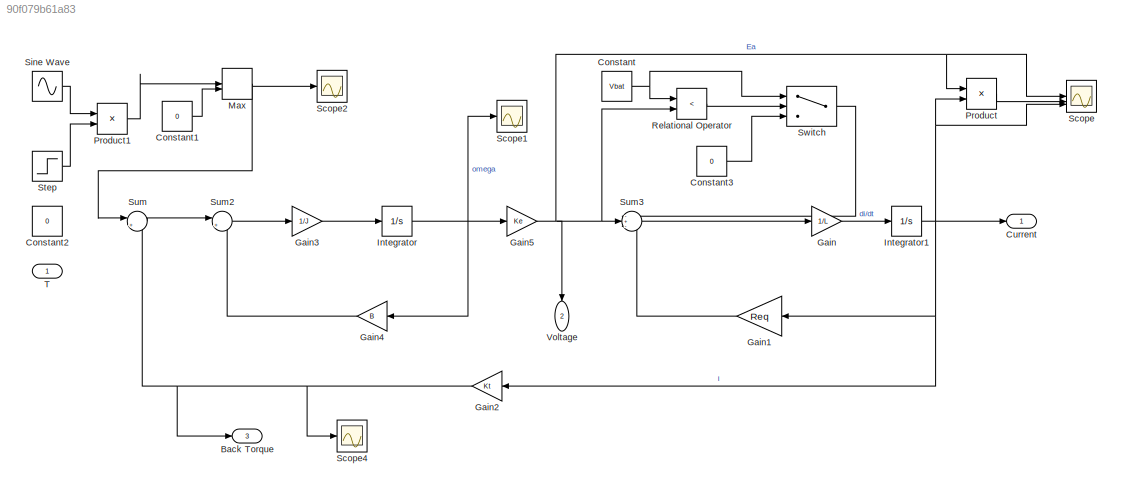
MODEL slx_90f079b61a83
KIND model
CONFIG AbsTol = auto
CONFIG EnableMultiTasking = off
CONFIG FixedStep = auto
CONFIG MaxStep = auto
CONFIG MinStep = auto
CONFIG RelTol = 1e-6
CONFIG SampleTimeConstraint = Unconstrained
CONFIG SolverName = VariableStepAuto
CONFIG StartTime = 0.0
CONFIG StopTime = 10
WORKSPACE source: mxarray member
WORKSPACE B = 0.1
WORKSPACE J = 0.01
WORKSPACE Ke = 0.01
WORKSPACE Kt = 0.01
WORKSPACE L = 0.5
WORKSPACE Req = 1
WORKSPACE Vbat = 24
BLOCK [Outport] Back Torque
  Port = 3
BLOCK [Constant] Constant
  Value = Vbat
BLOCK [Constant] Constant1
  Value = 0
BLOCK [Constant] Constant2
  Value = 0
BLOCK [Constant] Constant3
  Value = 0
BLOCK [Outport] Current
BLOCK [Gain] Gain
  Gain = 1/L
BLOCK [Gain] Gain1
  Gain = Req
  NameLocation = top
BLOCK [Gain] Gain2
  Gain = Kt
  NameLocation = top
BLOCK [Gain] Gain3
  Gain = 1/J
BLOCK [Gain] Gain4
  Gain = B
  NameLocation = top
BLOCK [Gain] Gain5
  Gain = Ke
BLOCK [Integrator] Integrator
BLOCK [Integrator] Integrator1
BLOCK [MinMax] Max
  Function = max
  Inputs = 2
BLOCK [Product] Product
BLOCK [Product] Product1
BLOCK [RelationalOperator] Relational Operator
  InputSameDT = off
  Operator = <
  OutDataTypeStr = boolean
  RndMeth = Simplest
BLOCK [Scope] Scope
  Floating = off
  NumInputPorts = 3
  ScopeSpecificationString = Simulink.scopes.TimeScopeBlockCfg('CurrentConfiguration', extmgr.ConfigurationSet(extmgr.Configuration('Core','General UI',true),extmgr.Configuration('Core','Source UI',true),extmgr.Configuration('Sources','WiredSimulink',true),extmgr.Configuration('Visuals','Time Domain',true,'SerializedDisplays',{struct('MinYLimReal','-7.30793','MaxYLimReal','65.74218','YLabelReal','','MinYLimMag','0.00000','Max...<+3033ch>
BLOCK [Scope] Scope1
  Floating = off
  NumInputPorts = 1
  ScopeSpecificationString = Simulink.scopes.TimeScopeBlockCfg('CurrentConfiguration', extmgr.ConfigurationSet(extmgr.Configuration('Core','General UI',true),extmgr.Configuration('Core','Source UI',true),extmgr.Configuration('Sources','WiredSimulink',true,'DataLoggingVariableName','ScopeData1'),extmgr.Configuration('Visuals','Time Domain',true,'SerializedDisplays',{struct('MinYLimReal','-729.29894','MaxYLimReal','6560.77635',...<+1499ch>
BLOCK [Scope] Scope2
  Floating = off
  NumInputPorts = 1
  ScopeSpecificationString = Simulink.scopes.TimeScopeBlockCfg('CurrentConfiguration', extmgr.ConfigurationSet(extmgr.Configuration('Core','General UI',true),extmgr.Configuration('Core','Source UI',true),extmgr.Configuration('Sources','WiredSimulink',true,'DataLoggingVariableName','ScopeData2'),extmgr.Configuration('Visuals','Time Domain',true,'SerializedDisplays',{struct('MinYLimReal','-124.9931','MaxYLimReal','1124.93794','...<+1539ch>
BLOCK [Scope] Scope4
  Floating = off
  NumInputPorts = 1
  ScopeSpecificationString = Simulink.scopes.TimeScopeBlockCfg('CurrentConfiguration', extmgr.ConfigurationSet(extmgr.Configuration('Core','General UI',true),extmgr.Configuration('Core','Source UI',true),extmgr.Configuration('Sources','WiredSimulink',true,'DataLoggingVariableName','ScopeData4'),extmgr.Configuration('Visuals','Time Domain',true,'SerializedDisplays',{struct('MinYLimReal','-0.26973','MaxYLimReal','0.02997','YLab...<+1525ch>
BLOCK [Sin] Sine Wave
  Amplitude = 1e3
  Frequency = 20
  SampleTime = 0
BLOCK [Step] Step
  After = 0
  Before = 1
  SampleTime = 0
  Time = 5
BLOCK [Sum] Sum
  Inputs = |+-
BLOCK [Sum] Sum2
  Inputs = |+-
BLOCK [Sum] Sum3
  Inputs = -+-
BLOCK [Switch] Switch
  Criteria = u2 > Threshold
  InputSameDT = off
  SaturateOnIntegerOverflow = off
  Threshold = 0.5
BLOCK [Inport] T
BLOCK [Outport] Voltage
  NameLocation = left
  Port = 2
LINE Constant1:1 -> Max:2
LINE Constant3:1 -> Switch:3
NET Constant:1 -> Relational Operator:1, Switch:1
LINE Gain1:1 -> Sum3:3
NET Gain2:1 -> Back Torque:1, Scope4:1, Sum:2
LINE Gain3:1 -> Integrator:1
LINE Gain4:1 -> Sum2:2
NET Gain5:1 -> Product:1, Relational Operator:2, Scope:1, Sum3:2, Voltage:1
LINE Gain:1 -> Integrator1:1
NET Integrator1:1 -> Current:1, Gain1:1, Gain2:1, Product:2, Scope:3
NET Integrator:1 -> Gain4:1, Gain5:1, Scope1:1
NET Max:1 -> Scope2:1, Sum:1
LINE Product1:1 -> Max:1
LINE Product:1 -> Scope:2
LINE Relational Operator:1 -> Switch:2
LINE Sine Wave:1 -> Product1:1
LINE Step:1 -> Product1:2
LINE Sum2:1 -> Gain3:1
LINE Sum3:1 -> Gain:1
LINE Sum:1 -> Sum2:1
LINE Switch:1 -> Sum3:1
note: NET lines group one-source signal fan-out (src -> all destinations, sorted); 1:1 wires keep LINE
